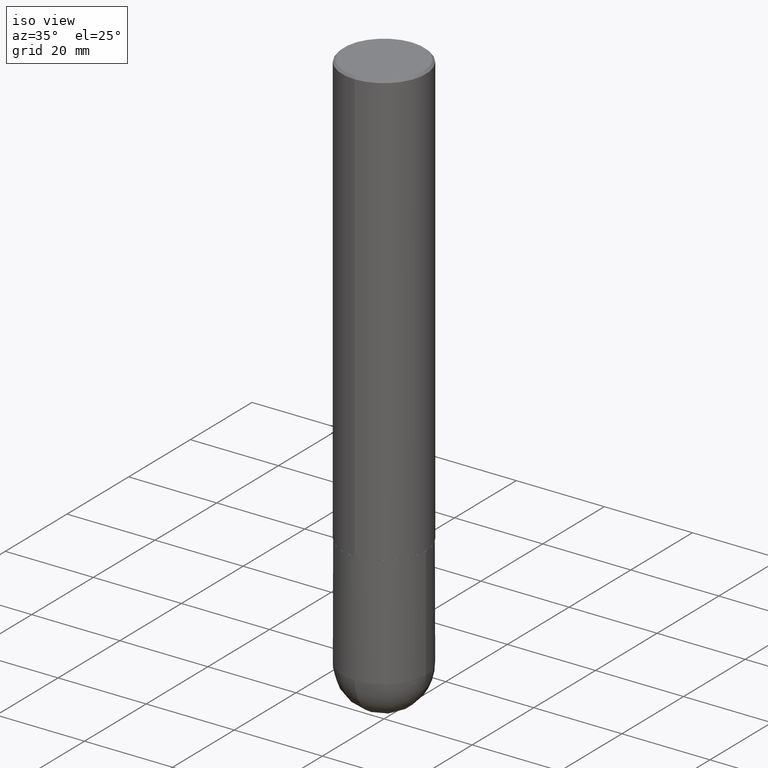
[diagram: clean part render]
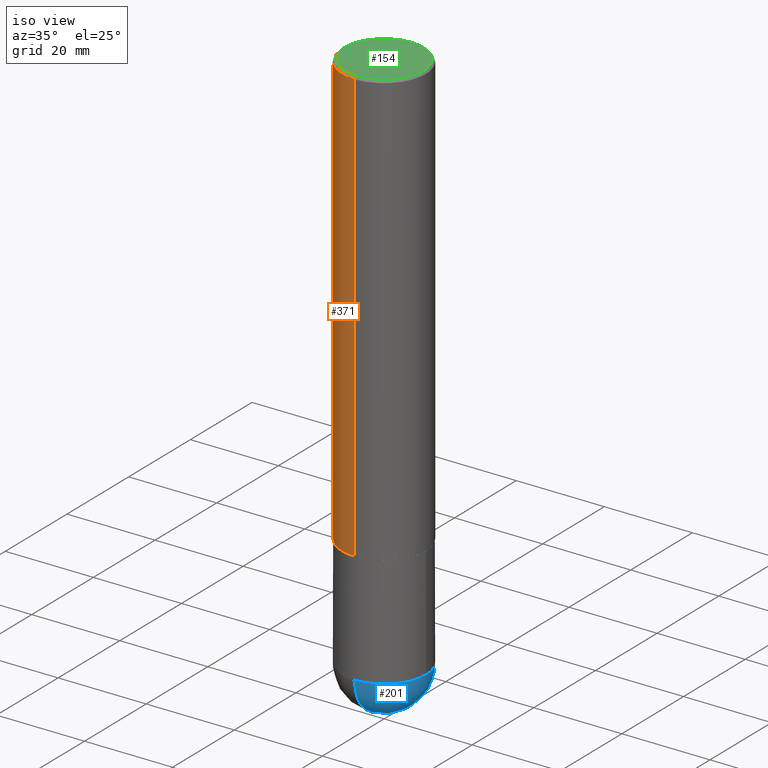
[diagram: same view with three faces highlighted in distinct colors, each labeled with its STEP entity id]
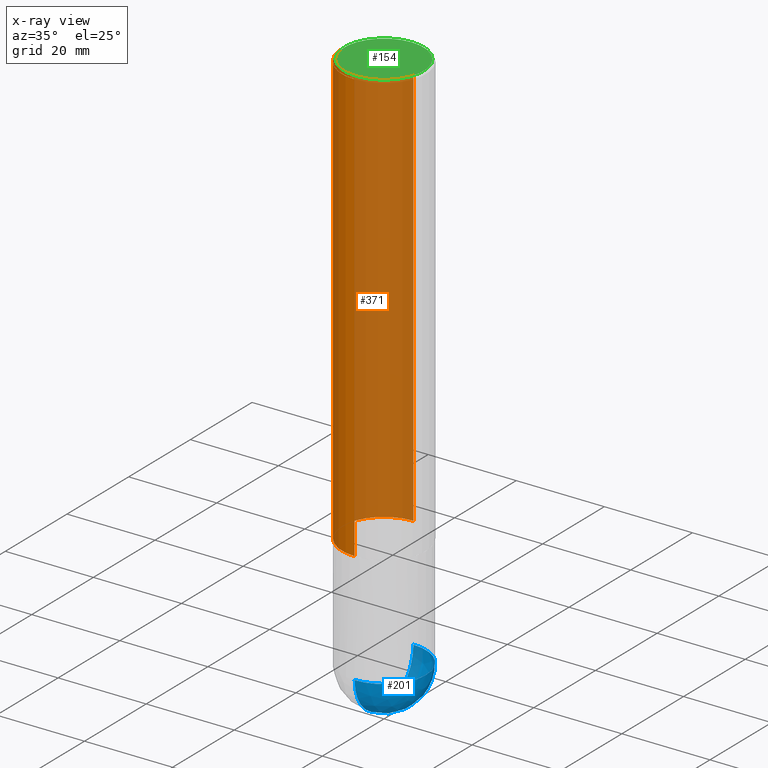
[diagram: x-ray of the same camera — body ghosted, the three highlighted faces saturated]
A machine part, iso view with three faces highlighted in distinct colors.
The next image is the same camera in x-ray (body ghosted, the three faces saturated) — at least one of them is partly hidden behind the body in this view.
Their STEP definitions:

[orange] entity #371 — the highlighted cylindrical surface (partial cylindrical patch) has radius 9.525 mm, axis along (-0, 0, 1).
#8 = EDGE_CURVE ( 'NONE', #343, #9, #25, .T. ) ;
#9 = VERTEX_POINT ( 'NONE', #242 ) ;
#12 = ORIENTED_EDGE ( 'NONE', *, *, #8, .T. ) ;
#15 = EDGE_LOOP ( 'NONE', ( #274, #337, #12, #140 ) ) ;
#18 = VECTOR ( 'NONE', #87, 39.37007874015748143 ) ;
#20 = LINE ( 'NONE', #342, #18 ) ;
#25 = LINE ( 'NONE', #147, #122 ) ;
#62 = CARTESIAN_POINT ( 'NONE',  ( 2.664535259100425790E-15, 0.3749999999999870104, -3.874000000000001442 ) ) ;
#76 = DIRECTION ( 'NONE',  ( -2.445685963754817288E-29, 3.491170356843521613E-15, 1.000000000000000000 ) ) ;
#87 = DIRECTION ( 'NONE',  ( -2.445685963754817288E-29, 3.491170356843521613E-15, 1.000000000000000000 ) ) ;
#117 = AXIS2_PLACEMENT_3D ( 'NONE', #411, #182, #392 ) ;
#122 = VECTOR ( 'NONE', #180, 39.37007874015748143 ) ;
#134 = VERTEX_POINT ( 'NONE', #62 ) ;
#136 = VERTEX_POINT ( 'NONE', #228 ) ;
#140 = ORIENTED_EDGE ( 'NONE', *, *, #344, .F. ) ;
#147 = CARTESIAN_POINT ( 'NONE',  ( -2.618611004132351989E-15, -0.3750000000000002776, 1.309188883816321591E-15 ) ) ;
#178 = CARTESIAN_POINT ( 'NONE',  ( 9.474587423586162919E-29, -1.352479396241180209E-14, -3.874000000000000110 ) ) ;
#180 = DIRECTION ( 'NONE',  ( -2.445685963754817288E-29, 3.491170356843521613E-15, 1.000000000000000000 ) ) ;
#182 = DIRECTION ( 'NONE',  ( -2.445685963754817288E-29, 3.491170356843521613E-15, 1.000000000000000000 ) ) ;
#183 = DIRECTION ( 'NONE',  ( -2.445685963754817288E-29, 3.491170356843521613E-15, 1.000000000000000000 ) ) ;
#186 = CIRCLE ( 'NONE', #350, 0.3750000000000004996 ) ;
#189 = EDGE_CURVE ( 'NONE', #134, #343, #186, .T. ) ;
#194 = DIRECTION ( 'NONE',  ( -6.982962677686265922E-15, -1.000000000000000000, 3.494488891895535640E-15 ) ) ;
#228 = CARTESIAN_POINT ( 'NONE',  ( 2.618611004132351200E-15, 0.3750000000000000555, -0.02000000000000139513 ) ) ;
#242 = CARTESIAN_POINT ( 'NONE',  ( -2.572686749164324336E-15, -0.3750000000000001665, -0.01999999999999877570 ) ) ;
#274 = ORIENTED_EDGE ( 'NONE', *, *, #328, .F. ) ;
#281 = DIRECTION ( 'NONE',  ( -6.982962677686266711E-15, -1.000000000000000000, 2.913971193241876822E-15 ) ) ;
#284 = CARTESIAN_POINT ( 'NONE',  ( -2.618611004132258903E-15, -0.3750000000000140443, -3.873999999999999222 ) ) ;
#291 = AXIS2_PLACEMENT_3D ( 'NONE', #374, #183, #194 ) ;
#328 = EDGE_CURVE ( 'NONE', #134, #136, #20, .T. ) ;
#337 = ORIENTED_EDGE ( 'NONE', *, *, #189, .T. ) ;
#342 = CARTESIAN_POINT ( 'NONE',  ( 2.664535259100377275E-15, 0.3750000000000002776, -1.309188883816321591E-15 ) ) ;
#343 = VERTEX_POINT ( 'NONE', #284 ) ;
#344 = EDGE_CURVE ( 'NONE', #136, #9, #370, .T. ) ;
#345 = CYLINDRICAL_SURFACE ( 'NONE', #117, 0.3750000000000002776 ) ;
#350 = AXIS2_PLACEMENT_3D ( 'NONE', #178, #76, #281 ) ;
#370 = CIRCLE ( 'NONE', #291, 0.3750000000000001110 ) ;
#371 = ADVANCED_FACE ( 'NONE', ( #405 ), #345, .T. ) ;
#374 = CARTESIAN_POINT ( 'NONE',  ( 4.891371927509655875E-31, -6.982340713687073104E-17, -0.02000000000000008715 ) ) ;
#392 = DIRECTION ( 'NONE',  ( -6.982962677686266711E-15, -1.000000000000000000, 3.491170356843521613E-15 ) ) ;
#405 = FACE_OUTER_BOUND ( 'NONE', #15, .T. ) ;
#411 = CARTESIAN_POINT ( 'NONE',  ( 0.000000000000000000, 0.000000000000000000, 0.000000000000000000 ) ) ;

[blue] entity #201 — the highlighted spherical surface has radius 9.525 mm.
#5 = CARTESIAN_POINT ( 'NONE',  ( 1.159054065223865578E-28, -1.749515389500038536E-14, -4.875000000000000000 ) ) ;
#7 = AXIS2_PLACEMENT_3D ( 'NONE', #126, #300, #391 ) ;
#24 = AXIS2_PLACEMENT_3D ( 'NONE', #124, #256, #247 ) ;
#35 = DIRECTION ( 'NONE',  ( 6.982962677686265922E-15, 1.000000000000000000, 0.000000000000000000 ) ) ;
#44 = AXIS2_PLACEMENT_3D ( 'NONE', #5, #225, #261 ) ;
#63 = VERTEX_POINT ( 'NONE', #407 ) ;
#69 = VERTEX_POINT ( 'NONE', #255 ) ;
#89 = EDGE_CURVE ( 'NONE', #285, #69, #97, .T. ) ;
#97 = CIRCLE ( 'NONE', #7, 0.3750000000000001110 ) ;
#120 = CARTESIAN_POINT ( 'NONE',  ( -2.664535259100258157E-15, -0.3750000000000173195, -4.874999999999999112 ) ) ;
#124 = CARTESIAN_POINT ( 'NONE',  ( 1.192166043015254091E-28, -1.702097152686033664E-14, -4.875000000000000000 ) ) ;
#126 = CARTESIAN_POINT ( 'NONE',  ( 1.192166043015254091E-28, -1.702097152686033664E-14, -4.875000000000000000 ) ) ;
#155 = CARTESIAN_POINT ( 'NONE',  ( 1.159054065223865578E-28, -1.749515389500038536E-14, -4.875000000000000000 ) ) ;
#165 = ORIENTED_EDGE ( 'NONE', *, *, #173, .F. ) ;
#173 = EDGE_CURVE ( 'NONE', #63, #229, #213, .T. ) ;
#174 = CIRCLE ( 'NONE', #24, 0.3750000000000001110 ) ;
#184 = FACE_OUTER_BOUND ( 'NONE', #400, .T. ) ;
#201 = ADVANCED_FACE ( 'NONE', ( #184 ), #380, .T. ) ;
#213 = CIRCLE ( 'NONE', #44, 0.3750000000000001110 ) ;
#225 = DIRECTION ( 'NONE',  ( -1.000000000000000000, 7.105427357601001070E-15, -4.926315508542082329E-29 ) ) ;
#227 = ORIENTED_EDGE ( 'NONE', *, *, #286, .T. ) ;
#229 = VERTEX_POINT ( 'NONE', #120 ) ;
#247 = DIRECTION ( 'NONE',  ( 1.000000000000000000, -6.982962677686260400E-15, 0.000000000000000000 ) ) ;
#251 = EDGE_CURVE ( 'NONE', #229, #285, #174, .T. ) ;
#255 = CARTESIAN_POINT ( 'NONE',  ( 2.618611004132467951E-15, 0.3749999999999829026, -4.875000000000001776 ) ) ;
#256 = DIRECTION ( 'NONE',  ( -2.445468806185136597E-29, 3.491481338843145583E-15, 1.000000000000000000 ) ) ;
#261 = DIRECTION ( 'NONE',  ( -7.105427357601001070E-15, -1.000000000000000000, 0.000000000000000000 ) ) ;
#271 = CIRCLE ( 'NONE', #317, 0.3750000000000001110 ) ;
#285 = VERTEX_POINT ( 'NONE', #316 ) ;
#286 = EDGE_CURVE ( 'NONE', #63, #69, #271, .T. ) ;
#289 = AXIS2_PLACEMENT_3D ( 'NONE', #384, #314, #379 ) ;
#300 = DIRECTION ( 'NONE',  ( -2.445468806185136597E-29, 3.491481338843145583E-15, 1.000000000000000000 ) ) ;
#301 = ORIENTED_EDGE ( 'NONE', *, *, #251, .F. ) ;
#314 = DIRECTION ( 'NONE',  ( -1.000000000000000000, 6.982962677686265922E-15, -4.883557194083112340E-29 ) ) ;
#316 = CARTESIAN_POINT ( 'NONE',  ( 0.3750000000000001110, -1.789384186157111051E-14, -4.875000000000000000 ) ) ;
#317 = AXIS2_PLACEMENT_3D ( 'NONE', #155, #355, #35 ) ;
#355 = DIRECTION ( 'NONE',  ( 1.000000000000000000, -6.982962677686265922E-15, 4.883557194083112340E-29 ) ) ;
#368 = ORIENTED_EDGE ( 'NONE', *, *, #89, .F. ) ;
#379 = DIRECTION ( 'NONE',  ( 6.982962677686265922E-15, 1.000000000000000000, -2.913971193241879977E-15 ) ) ;
#380 = SPHERICAL_SURFACE ( 'NONE', #289, 0.3750000000000001110 ) ;
#384 = CARTESIAN_POINT ( 'NONE',  ( 1.159054065223865578E-28, -1.749515389500038536E-14, -4.875000000000000000 ) ) ;
#391 = DIRECTION ( 'NONE',  ( 1.000000000000000000, -6.982962677686260400E-15, 0.000000000000000000 ) ) ;
#400 = EDGE_LOOP ( 'NONE', ( #165, #227, #368, #301 ) ) ;
#407 = CARTESIAN_POINT ( 'NONE',  ( 1.252362582248019568E-28, -1.878149726958255384E-14, -5.250000000000000000 ) ) ;

[green] entity #154 — the highlighted planar face has unit normal (0, -0, -1).
#22 = DIRECTION ( 'NONE',  ( -6.982962677686266711E-15, -1.000000000000000000, 3.491170356843521613E-15 ) ) ;
#49 = DIRECTION ( 'NONE',  ( -6.982962677686266711E-15, -1.000000000000000000, 3.491170356843521613E-15 ) ) ;
#83 = AXIS2_PLACEMENT_3D ( 'NONE', #250, #352, #49 ) ;
#110 = AXIS2_PLACEMENT_3D ( 'NONE', #308, #137, #22 ) ;
#137 = DIRECTION ( 'NONE',  ( -2.445685963754817288E-29, 3.491170356843521613E-15, 1.000000000000000000 ) ) ;
#144 = CARTESIAN_POINT ( 'NONE',  ( -2.504081769186610188E-15, -0.3550000000000003153, 1.013023916094263007E-15 ) ) ;
#149 = VERTEX_POINT ( 'NONE', #161 ) ;
#154 = ADVANCED_FACE ( 'NONE', ( #294 ), #258, .F. ) ;
#161 = CARTESIAN_POINT ( 'NONE',  ( 2.548781377355489085E-15, 0.3550000000000003153, -1.465707037264639846E-15 ) ) ;
#185 = EDGE_CURVE ( 'NONE', #340, #149, #190, .T. ) ;
#187 = ORIENTED_EDGE ( 'NONE', *, *, #336, .T. ) ;
#190 = CIRCLE ( 'NONE', #110, 0.3550000000000003153 ) ;
#223 = DIRECTION ( 'NONE',  ( 2.445685963754817008E-29, -3.491170356843521613E-15, -1.000000000000000000 ) ) ;
#244 = AXIS2_PLACEMENT_3D ( 'NONE', #386, #223, #326 ) ;
#250 = CARTESIAN_POINT ( 'NONE',  ( 5.535603777375557270E-45, -7.901969468367114777E-31, -2.263415605851883702E-16 ) ) ;
#258 = PLANE ( 'NONE',  #244 ) ;
#294 = FACE_OUTER_BOUND ( 'NONE', #365, .T. ) ;
#308 = CARTESIAN_POINT ( 'NONE',  ( 5.535603777375557270E-45, -7.901969468367114777E-31, -2.263415605851883702E-16 ) ) ;
#326 = DIRECTION ( 'NONE',  ( 6.982962677686265922E-15, 1.000000000000000000, -3.491170356843521613E-15 ) ) ;
#333 = ORIENTED_EDGE ( 'NONE', *, *, #185, .T. ) ;
#336 = EDGE_CURVE ( 'NONE', #149, #340, #376, .T. ) ;
#340 = VERTEX_POINT ( 'NONE', #144 ) ;
#352 = DIRECTION ( 'NONE',  ( -2.445685963754817288E-29, 3.491170356843521613E-15, 1.000000000000000000 ) ) ;
#365 = EDGE_LOOP ( 'NONE', ( #187, #333 ) ) ;
#376 = CIRCLE ( 'NONE', #83, 0.3550000000000003153 ) ;
#386 = CARTESIAN_POINT ( 'NONE',  ( 2.478951750578626970E-15, 0.3550000000000003153, -1.352536256972045341E-15 ) ) ;